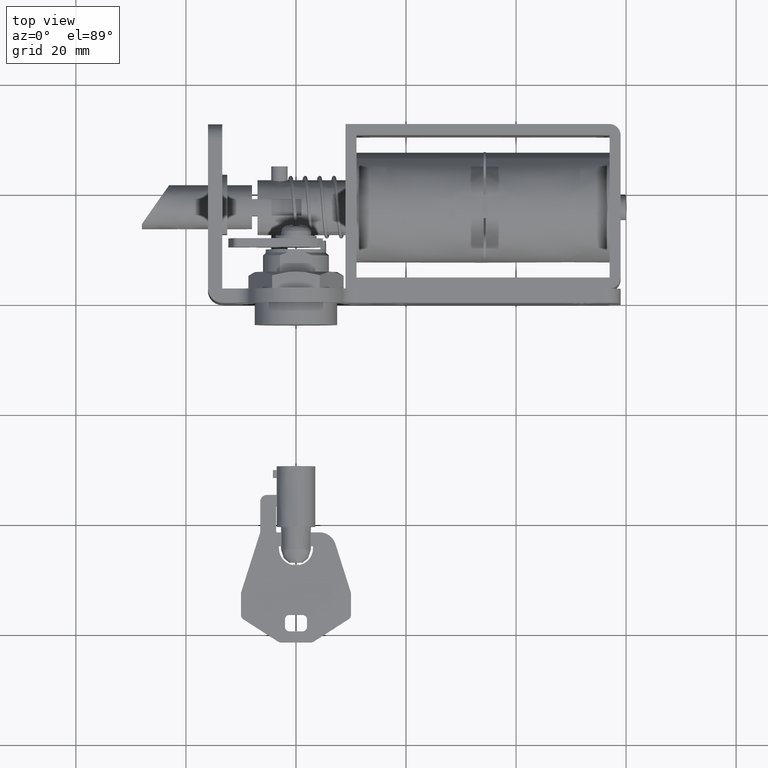
[diagram: clean part render]
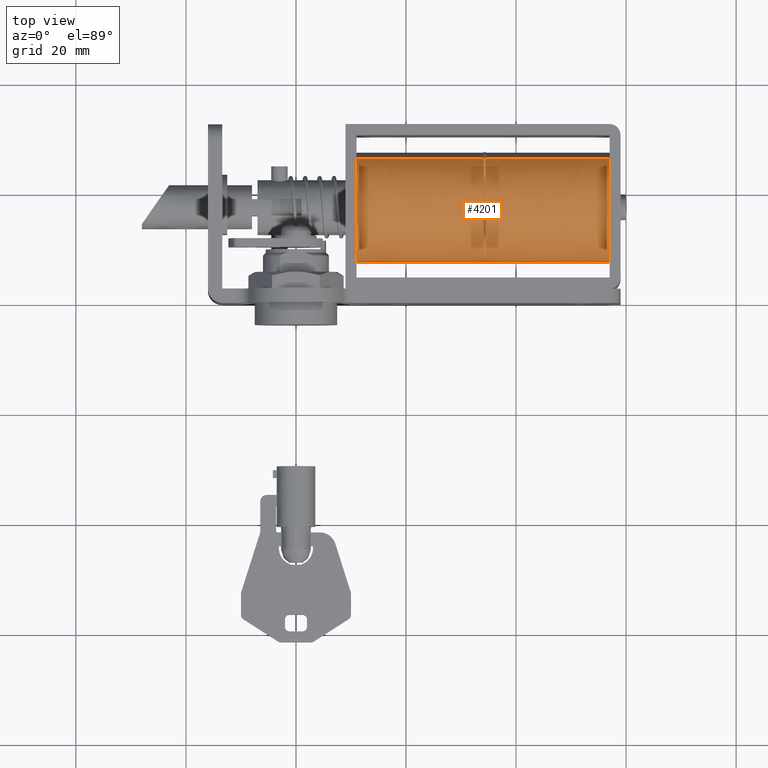
[diagram: same view with one face highlighted and labeled with its STEP entity id]
A machine part, top view. The second image highlights one B-rep face of the part: STEP entity #4201.
In plain terms, the highlighted face is a freeform B-spline surface patch.
Its self-contained STEP definition (entity closure, byte-faithful):
#3942=CARTESIAN_POINT('',(56.999999999999943,26.432090133933460,-6.503582999866900));
#3943=VERTEX_POINT('',#3942);
#3961=CARTESIAN_POINT('',(57.0,8.108479940217901,-14.435018335716411));
#3962=VERTEX_POINT('',#3961);
#3976=CARTESIAN_POINT('',(11.000000000000201,8.108479946689146,-14.435018353409140));
#3977=VERTEX_POINT('',#3976);
#3978=CARTESIAN_POINT('',(57.0,8.108479940217901,-14.435018335716411));
#3979=CARTESIAN_POINT('',(11.000000000000201,8.108479946689146,-14.435018353409140));
#3980=QUASI_UNIFORM_CURVE('',1,(#3978,#3979),.UNSPECIFIED.,.F.,.U.);
#3981=EDGE_CURVE('',#3962,#3977,#3980,.T.);
#3998=CARTESIAN_POINT('',(11.000000000000201,26.432090056832241,-6.503582846705523));
#3999=VERTEX_POINT('',#3998);
#4015=CARTESIAN_POINT('',(56.999999999999943,26.432090133933460,-6.503582999866900));
#4016=CARTESIAN_POINT('',(11.000000000000201,26.432090056832241,-6.503582846705523));
#4017=QUASI_UNIFORM_CURVE('',1,(#4015,#4016),.UNSPECIFIED.,.F.,.U.);
#4018=EDGE_CURVE('',#3943,#3999,#4017,.T.);
#4023=CARTESIAN_POINT('',(58.150000000000006,8.154854557632095,-14.561808907345020));
#4024=CARTESIAN_POINT('',(58.150000000000006,8.131732531049021,-14.498592106191074));
#4025=CARTESIAN_POINT('',(58.150000000000013,4.673460671916700,-5.043500284132280));
#4026=CARTESIAN_POINT('',(58.150000000000013,14.064980193892209,-1.608480478024490));
#4027=CARTESIAN_POINT('',(58.150000000000006,22.428050386365630,1.450376151490676));
#4028=CARTESIAN_POINT('',(58.150000000000013,26.463906415248726,-6.566785519747370));
#4029=CARTESIAN_POINT('',(58.150000000000013,26.495572757669329,-6.629690188522943));
#4030=CARTESIAN_POINT('',(9.821250000000205,8.154854557632095,-14.561808907345020));
#4031=CARTESIAN_POINT('',(9.821250000000205,8.131732531049021,-14.498592106191074));
#4032=CARTESIAN_POINT('',(9.821250000000205,4.673460671916700,-5.043500284132280));
#4033=CARTESIAN_POINT('',(9.821250000000205,14.064980193892209,-1.608480478024490));
#4034=CARTESIAN_POINT('',(9.821250000000205,22.428050386365630,1.450376151490676));
#4035=CARTESIAN_POINT('',(9.821250000000207,26.463906415248726,-6.566785519747370));
#4036=CARTESIAN_POINT('',(9.821250000000207,26.495572757669329,-6.629690188522943));
#4044=(BOUNDED_SURFACE()B_SPLINE_SURFACE(2,1,((#4023,#4030),(#4024,#4031),(#4025,#4032),(#4026,#4033),(#4027,#4034),(#4028,#4035),(#4029,#4036)),.UNSPECIFIED.,.F.,.F.,.U.)B_SPLINE_SURFACE_WITH_KNOTS((3,1,2,1,3),(2,2),(0.0,0.159056262925597,16.727598757849389,31.970657853179279,32.129731888785322),(0.0,48.328749999999808),.UNSPECIFIED.)GEOMETRIC_REPRESENTATION_ITEM()RATIONAL_B_SPLINE_SURFACE(((1.005623488105244,1.005623488105244),(1.002811744052622,1.002811744052622),(0.707106781186548,0.707106781186548),(1.0,1.0),(0.730538238691624,0.730538238691624),(0.959248247105702,0.959248247105702),(0.961610376020745,0.961610376020745)))REPRESENTATION_ITEM('')SURFACE());
#4045=CARTESIAN_POINT('',(57.0,17.500000000000000,-0.999999999999999));
#4046=VERTEX_POINT('',#4045);
#4047=CARTESIAN_POINT('',(57.0,17.500000000000000,-0.999999999999999));
#4048=CARTESIAN_POINT('',(57.000000000000007,23.661584710109878,-0.999999999999999));
#4049=CARTESIAN_POINT('',(56.999999999999943,26.432090133933464,-6.503582999866900));
#4057=(BOUNDED_CURVE()B_SPLINE_CURVE(2,(#4047,#4048,#4049),.UNSPECIFIED.,.F.,.U.)B_SPLINE_CURVE_WITH_KNOTS((3,3),(0.0,0.173551018251342),.UNSPECIFIED.)CURVE()GEOMETRIC_REPRESENTATION_ITEM()RATIONAL_B_SPLINE_CURVE((1.0,0.796672334544049,0.875646456116486))REPRESENTATION_ITEM(''));
#4058=EDGE_CURVE('',#4046,#3943,#4057,.T.);
#4059=ORIENTED_EDGE('',*,*,#4058,.T.);
#4060=ORIENTED_EDGE('',*,*,#4018,.T.);
#4061=CARTESIAN_POINT('',(11.000000000000201,17.500000000000000,-0.999999999999999));
#4062=VERTEX_POINT('',#4061);
#4063=CARTESIAN_POINT('',(11.000000000000201,17.500000000000000,-0.999999999999999));
#4064=CARTESIAN_POINT('',(11.000000000000199,23.661584591823377,-0.999999999999999));
#4065=CARTESIAN_POINT('',(11.000000000000201,26.432090056832234,-6.503582846705523));
#4073=(BOUNDED_CURVE()B_SPLINE_CURVE(2,(#4063,#4064,#4065),.UNSPECIFIED.,.F.,.U.)B_SPLINE_CURVE_WITH_KNOTS((3,3),(0.0,0.173551015597044),.UNSPECIFIED.)CURVE()GEOMETRIC_REPRESENTATION_ITEM()RATIONAL_B_SPLINE_CURVE((1.0,0.796672337653753,0.875646453700817))REPRESENTATION_ITEM(''));
#4074=EDGE_CURVE('',#4062,#3999,#4073,.T.);
#4075=ORIENTED_EDGE('',*,*,#4074,.F.);
#4076=CARTESIAN_POINT('',(11.000000000000201,8.108479946689146,-14.435018353409138));
#4077=CARTESIAN_POINT('',(11.000000000000199,7.500000000000002,-12.771402316046220));
#4078=CARTESIAN_POINT('',(11.000000000000201,7.500000000000002,-11.0));
#4079=CARTESIAN_POINT('',(11.000000000000199,7.500000000000003,-0.999999999999999));
#4080=CARTESIAN_POINT('',(11.000000000000201,17.500000000000000,-0.999999999999999));
#4088=(BOUNDED_CURVE()B_SPLINE_CURVE(2,(#4076,#4077,#4078,#4079,#4080),.UNSPECIFIED.,.F.,.U.)B_SPLINE_CURVE_WITH_KNOTS((3,2,3),(0.691652642858730,0.750000000000000,1.0),.UNSPECIFIED.)CURVE()GEOMETRIC_REPRESENTATION_ITEM()RATIONAL_B_SPLINE_CURVE((0.895191791649503,0.931641819030541,1.0,0.707106781186548,1.0))REPRESENTATION_ITEM(''));
#4089=EDGE_CURVE('',#3977,#4062,#4088,.T.);
#4090=ORIENTED_EDGE('',*,*,#4089,.F.);
#4091=ORIENTED_EDGE('',*,*,#3981,.F.);
#4092=CARTESIAN_POINT('',(57.000000000000028,8.108479940217784,-14.435018335716451));
#4093=CARTESIAN_POINT('',(57.000000000000014,7.500000000000003,-12.771402306331126));
#4094=CARTESIAN_POINT('',(57.0,7.500000000000002,-11.0));
#4095=CARTESIAN_POINT('',(57.000000000000014,7.500000000000003,-0.999999999999999));
#4096=CARTESIAN_POINT('',(57.0,17.500000000000000,-0.999999999999999));
#4104=(BOUNDED_CURVE()B_SPLINE_CURVE(2,(#4092,#4093,#4094,#4095,#4096),.UNSPECIFIED.,.F.,.U.)B_SPLINE_CURVE_WITH_KNOTS((3,2,3),(0.691652643156856,0.750000000000000,1.0),.UNSPECIFIED.)CURVE()GEOMETRIC_REPRESENTATION_ITEM()RATIONAL_B_SPLINE_CURVE((0.895191792021986,0.931641819379818,1.0,0.707106781186548,1.0))REPRESENTATION_ITEM(''));
#4105=EDGE_CURVE('',#3962,#4046,#4104,.T.);
#4106=ORIENTED_EDGE('',*,*,#4105,.T.);
#4107=EDGE_LOOP('',(#4059,#4060,#4075,#4090,#4091,#4106));
#4108=FACE_OUTER_BOUND('',#4107,.T.);
#4109=CARTESIAN_POINT('',(34.100006000000207,24.114378277661348,-3.500000000000000));
#4110=VERTEX_POINT('',#4109);
#4111=CARTESIAN_POINT('',(34.100006000000207,19.704747231633601,-1.246073116708210));
#4112=VERTEX_POINT('',#4111);
#4113=CARTESIAN_POINT('',(34.100006000000207,24.114378277661348,-3.500000000000000));
#4114=CARTESIAN_POINT('',(34.100006000000207,22.197583737559658,-1.809546110828091));
#4115=CARTESIAN_POINT('',(34.100006000000207,19.704747231633601,-1.246073116708210));
#4123=(BOUNDED_CURVE()B_SPLINE_CURVE(2,(#4113,#4114,#4115),.UNSPECIFIED.,.F.,.U.)CURVE()GEOMETRIC_REPRESENTATION_ITEM()QUASI_UNIFORM_CURVE()RATIONAL_B_SPLINE_CURVE((1.0,0.968858823104123,1.0))REPRESENTATION_ITEM(''));
#4124=EDGE_CURVE('',#4110,#4112,#4123,.T.);
#4125=ORIENTED_EDGE('',*,*,#4124,.F.);
#4126=CARTESIAN_POINT('',(34.500000000000000,24.114378277661348,-3.500000000000000));
#4127=VERTEX_POINT('',#4126);
#4128=CARTESIAN_POINT('',(34.500000000000000,24.114378277661348,-3.500000000000000));
#4129=CARTESIAN_POINT('',(34.100006000000207,24.114378277661348,-3.500000000000000));
#4130=QUASI_UNIFORM_CURVE('',1,(#4128,#4129),.UNSPECIFIED.,.F.,.U.);
#4131=EDGE_CURVE('',#4127,#4110,#4130,.T.);
#4132=ORIENTED_EDGE('',*,*,#4131,.F.);
#4133=CARTESIAN_POINT('',(34.500000000000000,19.704747231633601,-1.246073116708210));
#4134=VERTEX_POINT('',#4133);
#4135=CARTESIAN_POINT('',(34.500000000000000,24.114378277661348,-3.500000000000000));
#4136=CARTESIAN_POINT('',(34.500000000000000,22.197583737559658,-1.809546110828091));
#4137=CARTESIAN_POINT('',(34.500000000000000,19.704747231633601,-1.246073116708210));
#4145=(BOUNDED_CURVE()B_SPLINE_CURVE(2,(#4135,#4136,#4137),.UNSPECIFIED.,.F.,.U.)CURVE()GEOMETRIC_REPRESENTATION_ITEM()QUASI_UNIFORM_CURVE()RATIONAL_B_SPLINE_CURVE((1.0,0.968858823104123,1.0))REPRESENTATION_ITEM(''));
#4146=EDGE_CURVE('',#4127,#4134,#4145,.T.);
#4147=ORIENTED_EDGE('',*,*,#4146,.T.);
#4148=CARTESIAN_POINT('',(34.100006000000207,19.704747231633601,-1.246073116708210));
#4149=CARTESIAN_POINT('',(34.500000000000000,19.704747231633601,-1.246073116708210));
#4150=QUASI_UNIFORM_CURVE('',1,(#4148,#4149),.UNSPECIFIED.,.F.,.U.);
#4151=EDGE_CURVE('',#4112,#4134,#4150,.T.);
#4152=ORIENTED_EDGE('',*,*,#4151,.F.);
#4153=EDGE_LOOP('',(#4125,#4132,#4147,#4152));
#4154=FACE_BOUND('',#4153,.T.);
#4155=CARTESIAN_POINT('',(34.100006000000207,15.477291339425200,-1.206703840155036));
#4156=VERTEX_POINT('',#4155);
#4157=CARTESIAN_POINT('',(34.100006000000207,10.987387243988980,-3.411464232788980));
#4158=VERTEX_POINT('',#4157);
#4159=CARTESIAN_POINT('',(34.100006000000207,15.477291339425200,-1.206703840155036));
#4160=CARTESIAN_POINT('',(34.100006000000207,12.947583267201551,-1.729190073890356));
#4161=CARTESIAN_POINT('',(34.100006000000207,10.987387243988980,-3.411464232788980));
#4169=(BOUNDED_CURVE()B_SPLINE_CURVE(2,(#4159,#4160,#4161),.UNSPECIFIED.,.F.,.U.)CURVE()GEOMETRIC_REPRESENTATION_ITEM()QUASI_UNIFORM_CURVE()RATIONAL_B_SPLINE_CURVE((1.0,0.968219748849476,1.0))REPRESENTATION_ITEM(''));
#4170=EDGE_CURVE('',#4156,#4158,#4169,.T.);
#4171=ORIENTED_EDGE('',*,*,#4170,.F.);
#4172=CARTESIAN_POINT('',(34.500000000000000,15.477291339425200,-1.206703840155036));
#4173=VERTEX_POINT('',#4172);
#4174=CARTESIAN_POINT('',(34.500000000000000,15.477291339425200,-1.206703840155036));
#4175=CARTESIAN_POINT('',(34.100006000000207,15.477291339425200,-1.206703840155036));
#4176=QUASI_UNIFORM_CURVE('',1,(#4174,#4175),.UNSPECIFIED.,.F.,.U.);
#4177=EDGE_CURVE('',#4173,#4156,#4176,.T.);
#4178=ORIENTED_EDGE('',*,*,#4177,.F.);
#4179=CARTESIAN_POINT('',(34.500000000000000,10.987387243988980,-3.411464232788980));
#4180=VERTEX_POINT('',#4179);
#4181=CARTESIAN_POINT('',(34.500000000000000,15.477291339425200,-1.206703840155036));
#4182=CARTESIAN_POINT('',(34.500000000000000,12.947583267201551,-1.729190073890356));
#4183=CARTESIAN_POINT('',(34.500000000000000,10.987387243988980,-3.411464232788980));
#4191=(BOUNDED_CURVE()B_SPLINE_CURVE(2,(#4181,#4182,#4183),.UNSPECIFIED.,.F.,.U.)CURVE()GEOMETRIC_REPRESENTATION_ITEM()QUASI_UNIFORM_CURVE()RATIONAL_B_SPLINE_CURVE((1.0,0.968219748849476,1.0))REPRESENTATION_ITEM(''));
#4192=EDGE_CURVE('',#4173,#4180,#4191,.T.);
#4193=ORIENTED_EDGE('',*,*,#4192,.T.);
#4194=CARTESIAN_POINT('',(34.100006000000207,10.987387243988980,-3.411464232788980));
#4195=CARTESIAN_POINT('',(34.500000000000000,10.987387243988980,-3.411464232788980));
#4196=QUASI_UNIFORM_CURVE('',1,(#4194,#4195),.UNSPECIFIED.,.F.,.U.);
#4197=EDGE_CURVE('',#4158,#4180,#4196,.T.);
#4198=ORIENTED_EDGE('',*,*,#4197,.F.);
#4199=EDGE_LOOP('',(#4171,#4178,#4193,#4198));
#4200=FACE_BOUND('',#4199,.T.);
#4201=ADVANCED_FACE('',(#4108,#4154,#4200),#4044,.T.);